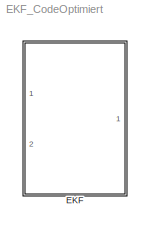
MODEL EKF_CodeOptimiert
KIND model
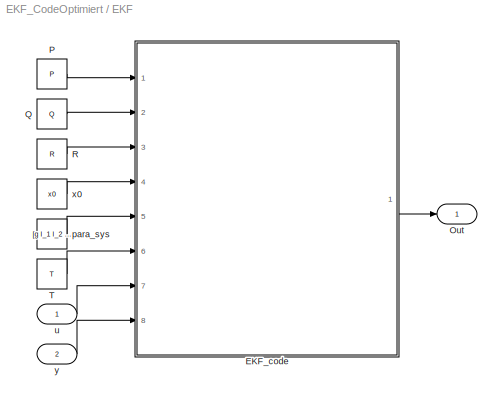
BLOCK [SubSystem] EKF
  FunctionWithSeparateData = off
  MaskHideContents = off
  MinAlgLoopOccurrences = off
  Opaque = off
  Ports = [2, 1]
  PropExecContextOutsideSubsystem = off
  RTWSystemCode = Auto
  RequestExecContextInheritance = off
  SID = 1
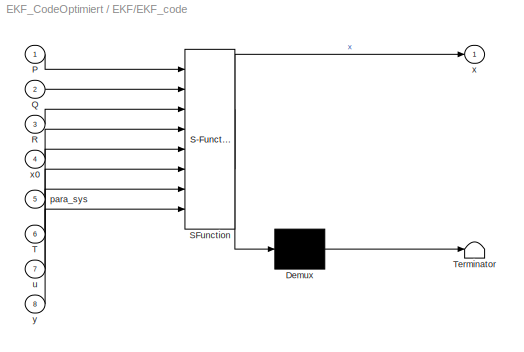
BLOCK [SubSystem] EKF/EKF_code
  ErrorFcn = Stateflow.Translate.translate
  FunctionWithSeparateData = off
  MaskHideContents = off
  MinAlgLoopOccurrences = off
  Opaque = off
  PermitHierarchicalResolution = ExplicitOnly
  Ports = [8, 1]
  PropExecContextOutsideSubsystem = off
  RTWSystemCode = Auto
  RequestExecContextInheritance = off
  SFBlockType = MATLAB Function
  SID = 2
  TreatAsAtomicUnit = on
BLOCK [Demux] EKF/EKF_code/ Demux 
  Outputs = 1
  Ports = [1, 1]
  SID = 2::15
BLOCK [S-Function] EKF/EKF_code/ SFunction 
  EnableBusSupport = off
  FunctionName = sf_sfun
  PortCounts = [8 2]
  Ports = [8, 2]
  SID = 2::14
  Tag = Stateflow S-Function EKF_CodeOptimiert 2
BLOCK [Terminator] EKF/EKF_code/ Terminator 
  SID = 2::17
BLOCK [Inport] EKF/EKF_code/P
  IconDisplay = Port number
  SID = 2::18
BLOCK [Inport] EKF/EKF_code/Q
  IconDisplay = Port number
  Port = 2
  SID = 2::19
BLOCK [Inport] EKF/EKF_code/R
  IconDisplay = Port number
  Port = 3
  SID = 2::20
BLOCK [Inport] EKF/EKF_code/T
  IconDisplay = Port number
  Port = 6
  SID = 2::23
BLOCK [Inport] EKF/EKF_code/para_sys
  IconDisplay = Port number
  Port = 5
  SID = 2::22
BLOCK [Inport] EKF/EKF_code/u
  IconDisplay = Port number
  Port = 7
  SID = 2::1
BLOCK [Outport] EKF/EKF_code/x
  IconDisplay = Port number
  SID = 2::25
BLOCK [Inport] EKF/EKF_code/x0
  IconDisplay = Port number
  Port = 4
  SID = 2::21
BLOCK [Inport] EKF/EKF_code/y
  IconDisplay = Port number
  Port = 8
  SID = 2::24
BLOCK [Outport] EKF/Out
  IconDisplay = Port number
  SID = 11
BLOCK [Constant] EKF/P
  SID = 3
  Value = P
BLOCK [Constant] EKF/Q
  SID = 4
  Value = Q
BLOCK [Constant] EKF/R
  SID = 5
  Value = R
BLOCK [Constant] EKF/T
  SID = 8
  Value = T
BLOCK [Constant] EKF/para_sys
  SID = 7
  Value = [g l_1 l_2 m_1 m_2 m_3 d_p1 d_p2]
BLOCK [Inport] EKF/u
  IconDisplay = Port number
  SID = 9
BLOCK [Constant] EKF/x0
  SID = 6
  Value = x0
BLOCK [Inport] EKF/y
  IconDisplay = Port number
  Port = 2
  SID = 10
LINE EKF/EKF_code/ Demux :1 -> EKF/EKF_code/ Terminator :1
LINE EKF/EKF_code/ SFunction :1 -> EKF/EKF_code/ Demux :1
LINE EKF/EKF_code/ SFunction :2 -> EKF/EKF_code/x:1
LINE EKF/EKF_code/P:1 -> EKF/EKF_code/ SFunction :1
LINE EKF/EKF_code/Q:1 -> EKF/EKF_code/ SFunction :2
LINE EKF/EKF_code/R:1 -> EKF/EKF_code/ SFunction :3
LINE EKF/EKF_code/T:1 -> EKF/EKF_code/ SFunction :6
LINE EKF/EKF_code/para_sys:1 -> EKF/EKF_code/ SFunction :5
LINE EKF/EKF_code/u:1 -> EKF/EKF_code/ SFunction :7
LINE EKF/EKF_code/x0:1 -> EKF/EKF_code/ SFunction :4
LINE EKF/EKF_code/y:1 -> EKF/EKF_code/ SFunction :8
LINE EKF/EKF_code:1 -> EKF/Out:1
LINE EKF/P:1 -> EKF/EKF_code:1
LINE EKF/Q:1 -> EKF/EKF_code:2
LINE EKF/R:1 -> EKF/EKF_code:3
LINE EKF/T:1 -> EKF/EKF_code:6
LINE EKF/para_sys:1 -> EKF/EKF_code:5
LINE EKF/u:1 -> EKF/EKF_code:7
LINE EKF/x0:1 -> EKF/EKF_code:4
LINE EKF/y:1 -> EKF/EKF_code:8
CHART EKF/EKF_code states=1 transitions=1
  STATE_LABEL 'eML_blk_kernel()'
